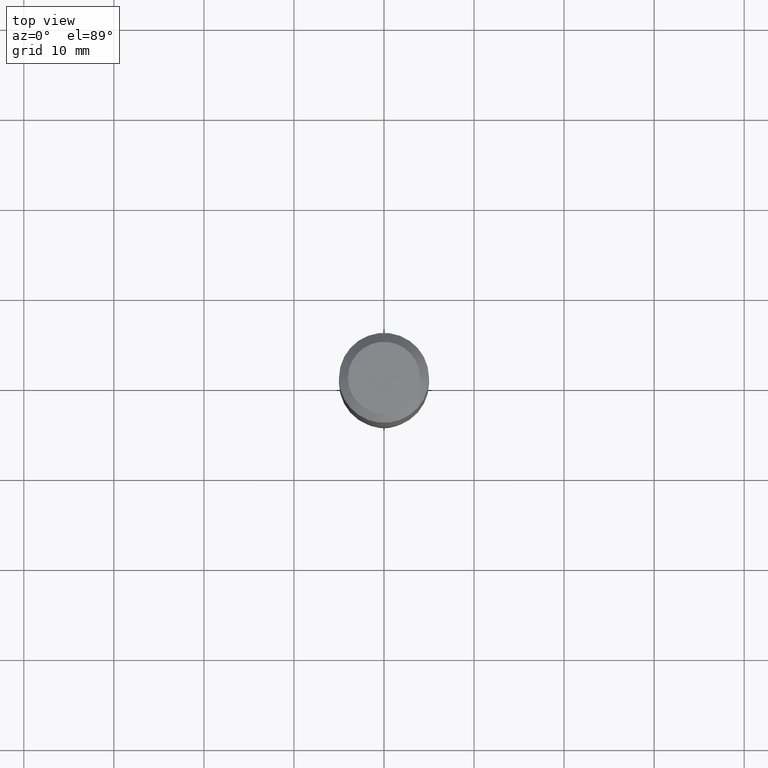
[diagram: clean part render]
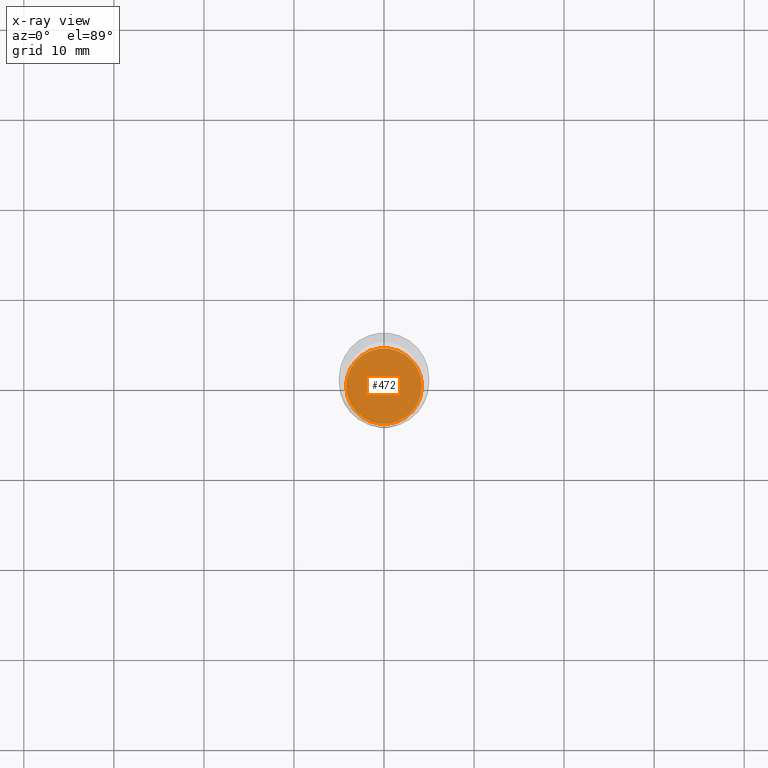
[diagram: x-ray — body ghosted, one internal face saturated and labeled with its STEP entity id]
A machine part, top view, then the same camera in x-ray: the body is ghosted and one INTERNAL B-rep face — a face not visible from any outside direction — is saturated and labeled: STEP entity #472.
In plain terms, the highlighted planar face has unit normal (-0, 0, 1).
Its self-contained STEP definition (entity closure, byte-faithful):
#47 = FACE_OUTER_BOUND ( 'NONE', #369, .T. ) ;
#63 = CARTESIAN_POINT ( 'NONE',  ( 0.1655000000000000082, -8.633036758423557081E-15, -2.141599999999999948 ) ) ;
#82 = AXIS2_PLACEMENT_3D ( 'NONE', #450, #248, #443 ) ;
#104 = CIRCLE ( 'NONE', #503, 0.1655000000000000082 ) ;
#111 = CARTESIAN_POINT ( 'NONE',  ( 5.237215995326088654E-29, -7.477356435266480697E-15, -2.141599999999999948 ) ) ;
#122 = VERTEX_POINT ( 'NONE', #63 ) ;
#145 = CIRCLE ( 'NONE', #82, 0.1655000000000000082 ) ;
#155 = EDGE_CURVE ( 'NONE', #171, #122, #145, .T. ) ;
#171 = VERTEX_POINT ( 'NONE', #507 ) ;
#172 = DIRECTION ( 'NONE',  ( 1.000000000000000000, -6.982962677686265922E-15, 4.876176775795935793E-29 ) ) ;
#210 = PLANE ( 'NONE',  #302 ) ;
#222 = DIRECTION ( 'NONE',  ( -2.445468806185136597E-29, 3.491481338843145583E-15, 1.000000000000000000 ) ) ;
#248 = DIRECTION ( 'NONE',  ( -2.445468806185136597E-29, 3.491481338843145583E-15, 1.000000000000000000 ) ) ;
#302 = AXIS2_PLACEMENT_3D ( 'NONE', #328, #371, #172 ) ;
#328 = CARTESIAN_POINT ( 'NONE',  ( 7.705735774854212263E-29, -3.942295611561715217E-15, -2.141599999999999948 ) ) ;
#338 = ORIENTED_EDGE ( 'NONE', *, *, #497, .F. ) ;
#369 = EDGE_LOOP ( 'NONE', ( #338, #484 ) ) ;
#371 = DIRECTION ( 'NONE',  ( -2.438088387897960049E-29, 3.491481338843145188E-15, 1.000000000000000000 ) ) ;
#383 = DIRECTION ( 'NONE',  ( 1.000000000000000000, -6.982962677686265133E-15, 0.000000000000000000 ) ) ;
#443 = DIRECTION ( 'NONE',  ( 1.000000000000000000, -6.982962677686265133E-15, 0.000000000000000000 ) ) ;
#450 = CARTESIAN_POINT ( 'NONE',  ( 5.237215995326088654E-29, -7.477356435266480697E-15, -2.141599999999999948 ) ) ;
#472 = ADVANCED_FACE ( 'NONE', ( #47 ), #210, .F. ) ;
#484 = ORIENTED_EDGE ( 'NONE', *, *, #155, .F. ) ;
#497 = EDGE_CURVE ( 'NONE', #122, #171, #104, .T. ) ;
#503 = AXIS2_PLACEMENT_3D ( 'NONE', #111, #222, #383 ) ;
#507 = CARTESIAN_POINT ( 'NONE',  ( -0.1655000000000000082, -6.298758980409403828E-15, -2.141599999999999948 ) ) ;